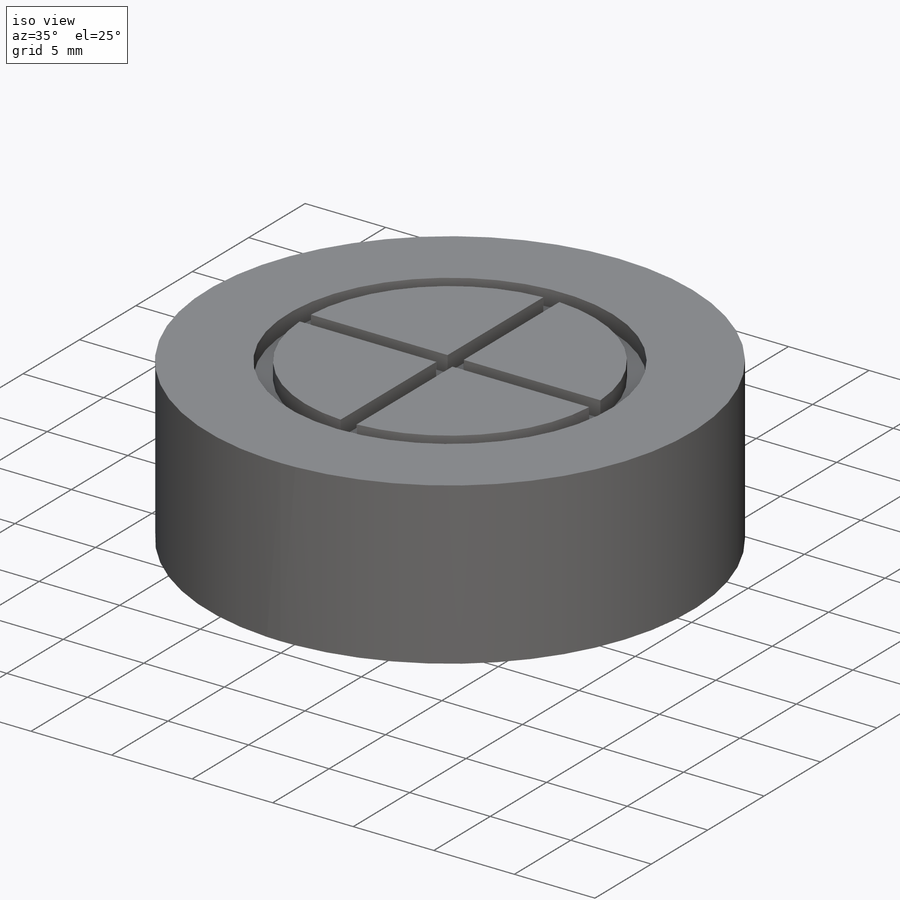
[diagram: iso view]
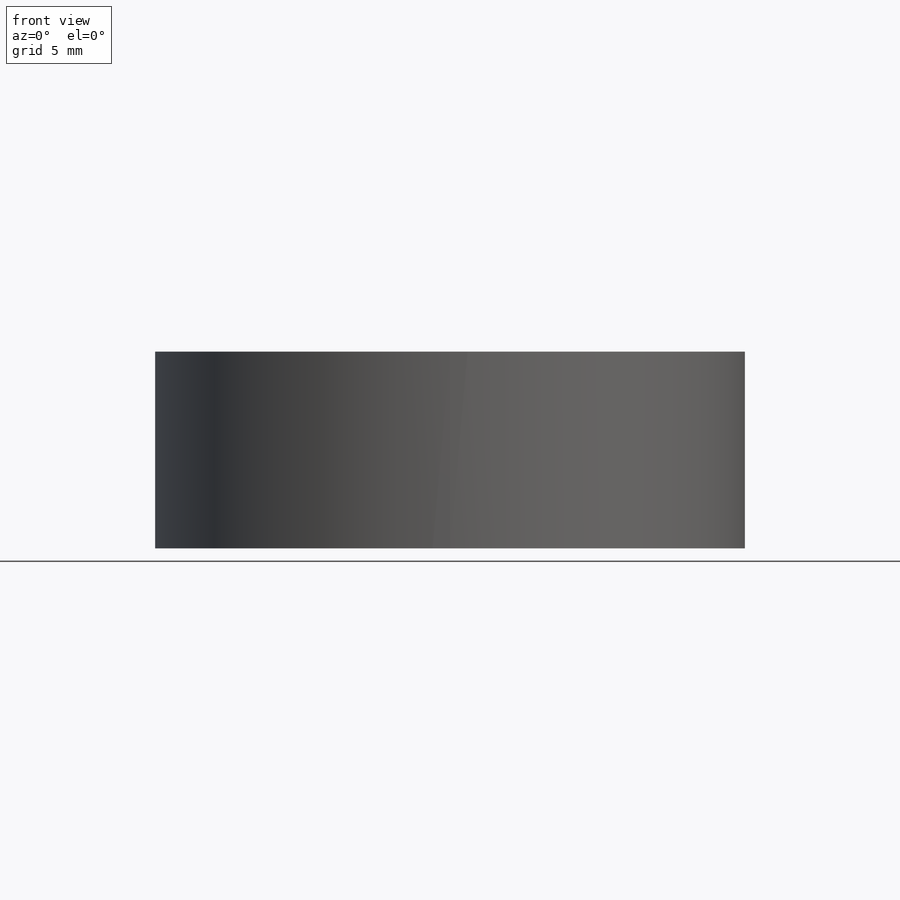
[diagram: front view]
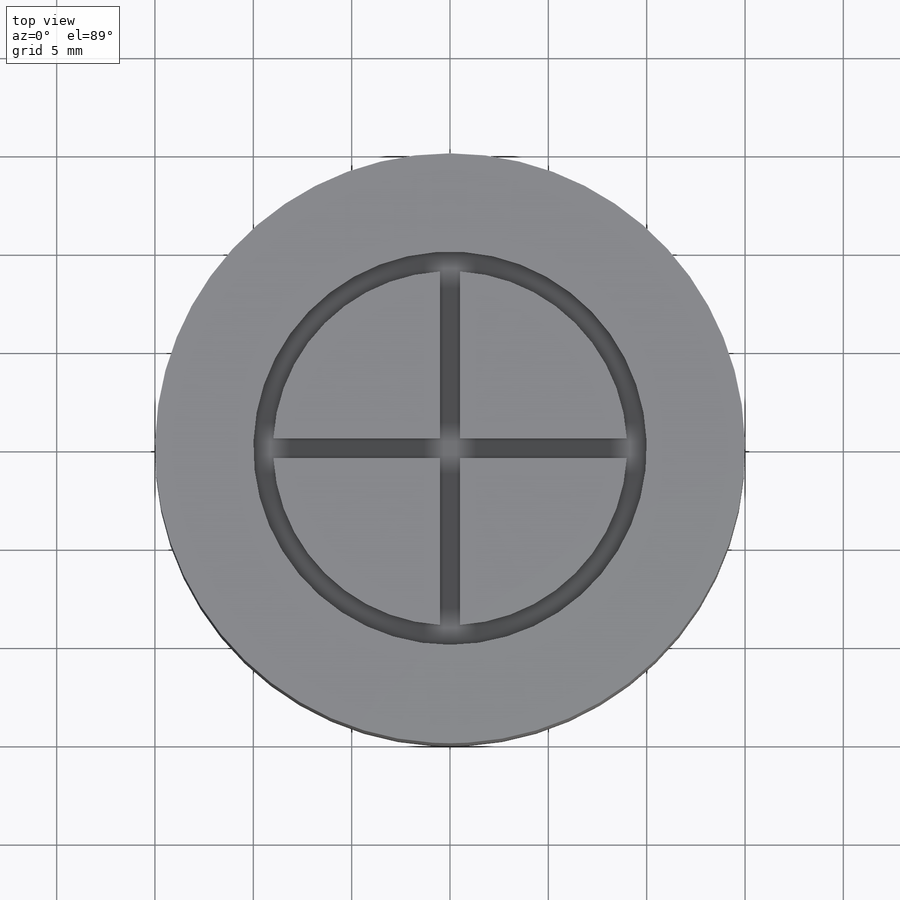
[diagram: top view]
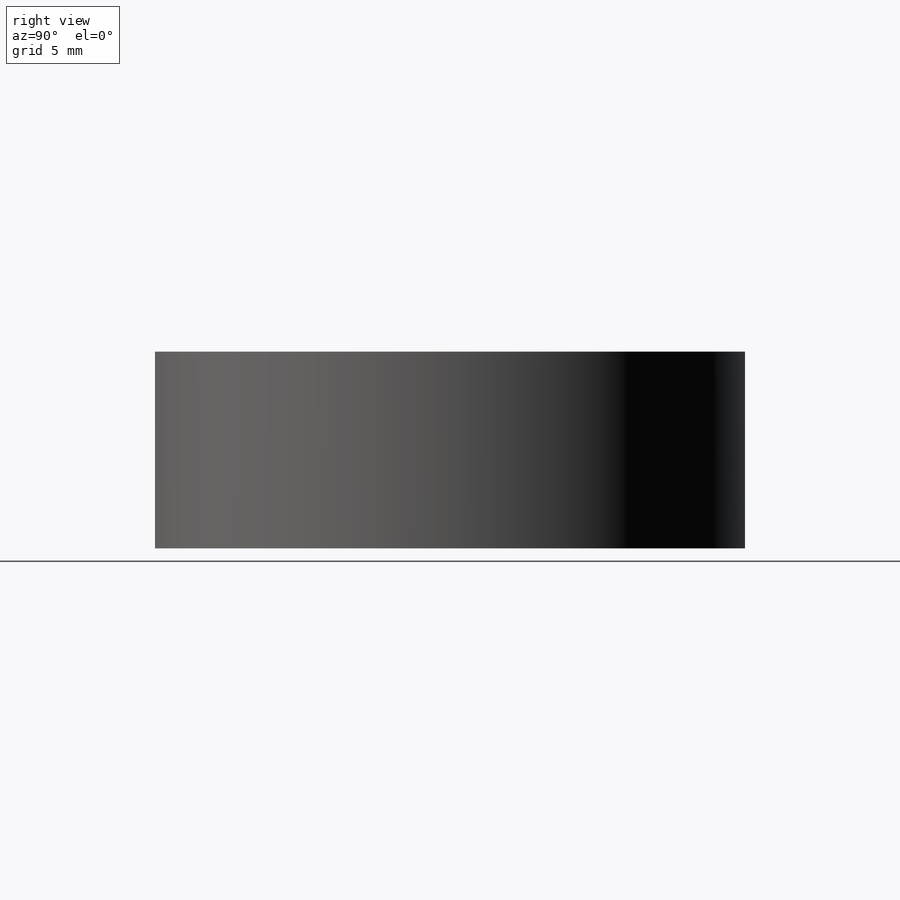
[diagram: right view]
SOLIDWORKS PART (.sldprt)
format: sldprt  version: not decoded by parser v0  size: 179,712 bytes
history: native  units: mm
features: sketch x3, plane x2, material x1, extrude x1, cut_revolve x1, cut_extrude x1 (+12 scaffold rows collapsed)
feature tree (21):
  scaffold x12  (default folders/planes/origin — collapsed)
  material  "Material <not specified>"
  sketch  "Sketch1"  dims[D1=20.0mm]
  extrude  "Boss-Extrude1"  Depth=10mm
  plane  "Plane1"  Offset=0mm
  sketch  "Sketch2"  dims[c1.D1=18.0mm c1.D2=20.0mm c2.D1=0.5mm c2.D2=0.5mm c2.D3=0.5mm c2.D4=0.5mm c3.D3=0.5mm c3.D4=0.5mm c4.D3=0.5mm c4.D4=0.5mm c4.D5=~0.50008mm c5.D3=1.0mm c5.D4=~0.642806mm c6.D3=0.5mm c6.D4=0.5mm c6.D5=0.5mm c6.D6=0.5mm]
  plane  "Plane2"  Offset=0mm
  sketch  "Sketch3"  dims[D1=0.5mm]
  cut_revolve  "Cut-Revolve1"  Angle=360deg
  cut_extrude  "Cut-Extrude1"  Depth=1mm
decode coverage: 6 of 6 modeling features carry decoded parameters
note: ~ marks probable driven/reference dimensions
note: suppression state not decoded; provenance and decode notes live in map.json
